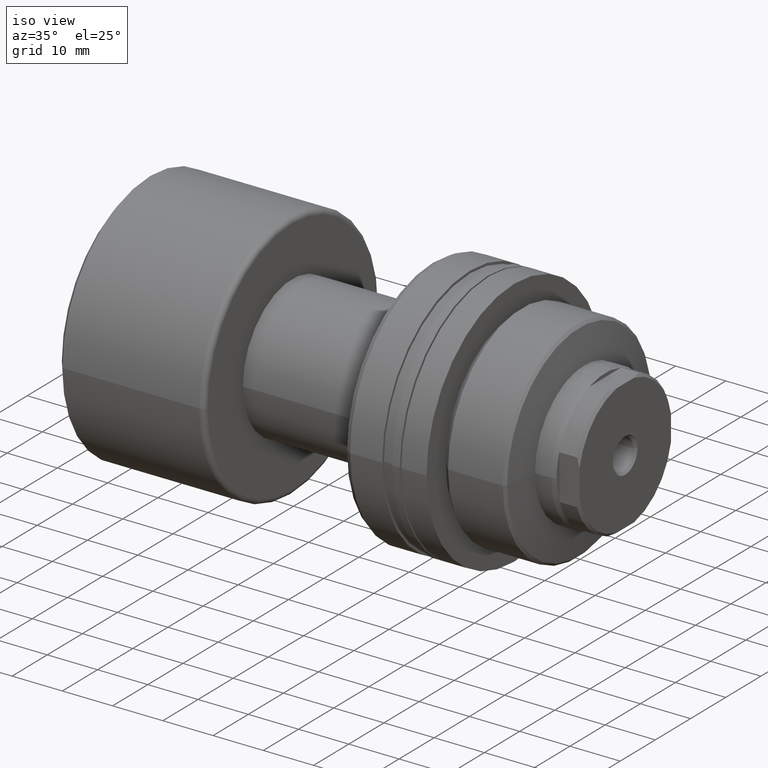
[diagram: clean part render]
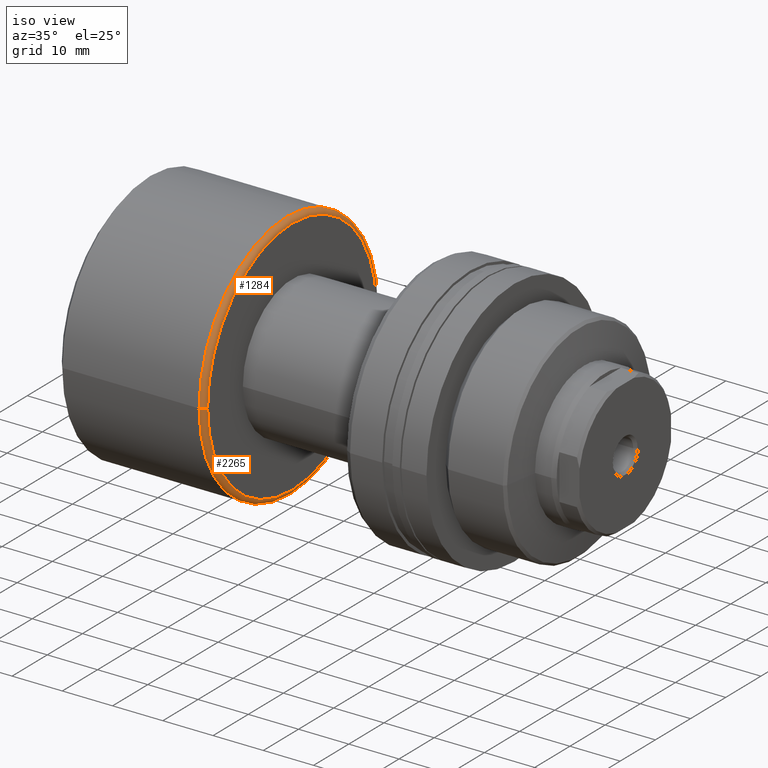
[diagram: same view with one multi-face feature highlighted, each face labeled with its STEP entity id]
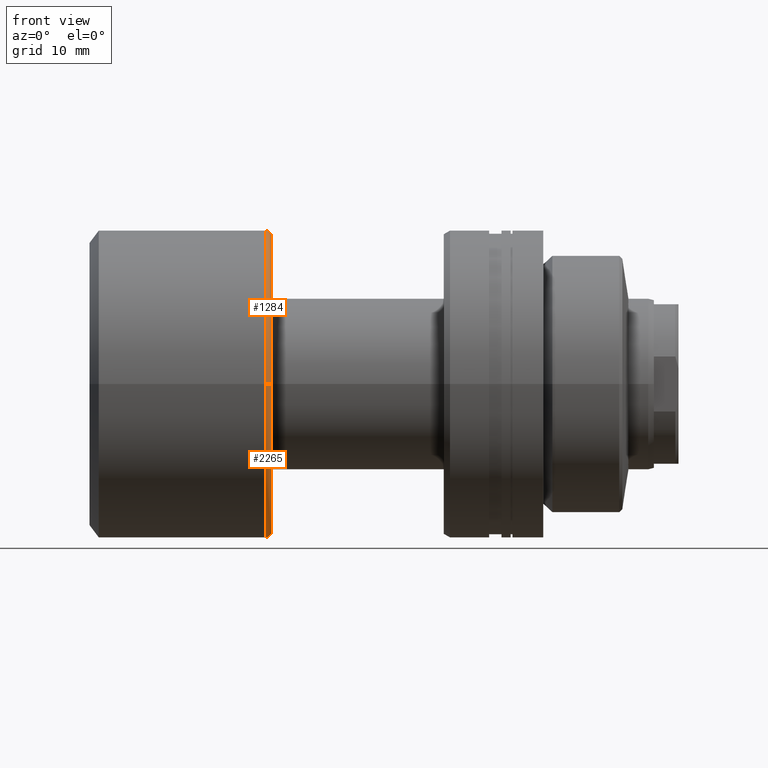
[diagram: same view with one multi-face feature highlighted, each face labeled with its STEP entity id]
A machine part, iso view. The highlighted faces form ONE feature: a constant-radius fillet chain: 2 tangent blend faces with common blend radius 1 mm. The faces share edges in the B-rep.
A second angle (front view) of the same feature is appended — it is thin or edge-on in the first view.
Their STEP definitions:
[1] entity #2265 (Torus):
#104 = DIRECTION ( 'NONE',  ( 0.000000000000000000, 0.000000000000000000, -1.000000000000000000 ) ) ;
#301 = CIRCLE ( 'NONE', #987, 1.000000000000000888 ) ;
#464 = EDGE_CURVE ( 'NONE', #930, #960, #1642, .T. ) ;
#474 = CARTESIAN_POINT ( 'NONE',  ( 29.69999999999999574, 24.00000000000000000, 3.000384657911015469E-15 ) ) ;
#513 = VERTEX_POINT ( 'NONE', #1980 ) ;
#570 = ORIENTED_EDGE ( 'NONE', *, *, #910, .T. ) ;
#572 = CIRCLE ( 'NONE', #1153, 1.000000000000000888 ) ;
#582 = AXIS2_PLACEMENT_3D ( 'NONE', #2216, #2195, #1309 ) ;
#603 = DIRECTION ( 'NONE',  ( -1.000000000000000000, -1.069542322069065801E-17, -0.000000000000000000 ) ) ;
#722 = CARTESIAN_POINT ( 'NONE',  ( 29.69999999999999574, 3.176540696545125501E-16, 0.000000000000000000 ) ) ;
#798 = AXIS2_PLACEMENT_3D ( 'NONE', #1331, #603, #1851 ) ;
#910 = EDGE_CURVE ( 'NONE', #960, #1617, #301, .T. ) ;
#930 = VERTEX_POINT ( 'NONE', #474 ) ;
#939 = FACE_OUTER_BOUND ( 'NONE', #1411, .T. ) ;
#960 = VERTEX_POINT ( 'NONE', #2065 ) ;
#987 = AXIS2_PLACEMENT_3D ( 'NONE', #2054, #104, #1361 ) ;
#1004 = EDGE_CURVE ( 'NONE', #513, #1617, #1495, .T. ) ;
#1077 = DIRECTION ( 'NONE',  ( 1.309811581274509052E-33, -1.224646799147353207E-16, 1.000000000000000000 ) ) ;
#1102 = EDGE_CURVE ( 'NONE', #930, #513, #572, .T. ) ;
#1153 = AXIS2_PLACEMENT_3D ( 'NONE', #2140, #1077, #1788 ) ;
#1268 = CARTESIAN_POINT ( 'NONE',  ( 28.69999999999999574, -25.00000000000000000, 0.000000000000000000 ) ) ;
#1309 = DIRECTION ( 'NONE',  ( 1.069542322069065955E-17, -1.000000000000000000, 0.000000000000000000 ) ) ;
#1331 = CARTESIAN_POINT ( 'NONE',  ( 28.69999999999999574, 3.069586464338218566E-16, 0.000000000000000000 ) ) ;
#1333 = ORIENTED_EDGE ( 'NONE', *, *, #1004, .F. ) ;
#1361 = DIRECTION ( 'NONE',  ( -1.000000000000000000, 0.000000000000000000, 0.000000000000000000 ) ) ;
#1411 = EDGE_LOOP ( 'NONE', ( #1633, #2277, #570, #1333 ) ) ;
#1495 = CIRCLE ( 'NONE', #798, 25.00000000000000000 ) ;
#1617 = VERTEX_POINT ( 'NONE', #1268 ) ;
#1633 = ORIENTED_EDGE ( 'NONE', *, *, #1102, .F. ) ;
#1642 = CIRCLE ( 'NONE', #1826, 24.00000000000000000 ) ;
#1788 = DIRECTION ( 'NONE',  ( 0.000000000000000000, -1.000000000000000000, -1.224646799147353454E-16 ) ) ;
#1826 = AXIS2_PLACEMENT_3D ( 'NONE', #722, #2131, #1991 ) ;
#1851 = DIRECTION ( 'NONE',  ( 0.000000000000000000, -1.000000000000000000, 0.000000000000000000 ) ) ;
#1980 = CARTESIAN_POINT ( 'NONE',  ( 28.69999999999999574, 25.00000000000000000, 3.061616997868383043E-15 ) ) ;
#1991 = DIRECTION ( 'NONE',  ( 0.000000000000000000, -1.000000000000000000, 0.000000000000000000 ) ) ;
#2054 = CARTESIAN_POINT ( 'NONE',  ( 28.69999999999999574, -24.00000000000000000, 0.000000000000000000 ) ) ;
#2065 = CARTESIAN_POINT ( 'NONE',  ( 29.69999999999999574, -24.00000000000000000, 0.000000000000000000 ) ) ;
#2131 = DIRECTION ( 'NONE',  ( -1.000000000000000000, -1.069542322069065801E-17, -0.000000000000000000 ) ) ;
#2140 = CARTESIAN_POINT ( 'NONE',  ( 28.69999999999999574, 24.00000000000000000, 2.939152317953647894E-15 ) ) ;
#2195 = DIRECTION ( 'NONE',  ( -1.000000000000000000, -1.069542322069065801E-17, -0.000000000000000000 ) ) ;
#2206 = TOROIDAL_SURFACE ( 'NONE', #582, 24.00000000000000000, 1.000000000000000888 ) ;
#2216 = CARTESIAN_POINT ( 'NONE',  ( 28.69999999999999574, 0.000000000000000000, 0.000000000000000000 ) ) ;
#2265 = ADVANCED_FACE ( 'NONE', ( #939 ), #2206, .T. ) ;
#2277 = ORIENTED_EDGE ( 'NONE', *, *, #464, .T. ) ;
[2] entity #1284 (Torus):
#61 = DIRECTION ( 'NONE',  ( 1.069542322069065955E-17, -1.000000000000000000, 0.000000000000000000 ) ) ;
#69 = CARTESIAN_POINT ( 'NONE',  ( 28.69999999999999574, 0.000000000000000000, 0.000000000000000000 ) ) ;
#104 = DIRECTION ( 'NONE',  ( 0.000000000000000000, 0.000000000000000000, -1.000000000000000000 ) ) ;
#128 = DIRECTION ( 'NONE',  ( 0.000000000000000000, -1.000000000000000000, 0.000000000000000000 ) ) ;
#243 = DIRECTION ( 'NONE',  ( -1.000000000000000000, -1.069542322069065801E-17, -0.000000000000000000 ) ) ;
#301 = CIRCLE ( 'NONE', #987, 1.000000000000000888 ) ;
#441 = FACE_OUTER_BOUND ( 'NONE', #2183, .T. ) ;
#446 = ORIENTED_EDGE ( 'NONE', *, *, #910, .F. ) ;
#453 = CARTESIAN_POINT ( 'NONE',  ( 29.69999999999999574, 3.176540696545125501E-16, 0.000000000000000000 ) ) ;
#471 = CARTESIAN_POINT ( 'NONE',  ( 28.69999999999999574, 3.069586464338218566E-16, 0.000000000000000000 ) ) ;
#474 = CARTESIAN_POINT ( 'NONE',  ( 29.69999999999999574, 24.00000000000000000, 3.000384657911015469E-15 ) ) ;
#513 = VERTEX_POINT ( 'NONE', #1980 ) ;
#572 = CIRCLE ( 'NONE', #1153, 1.000000000000000888 ) ;
#671 = DIRECTION ( 'NONE',  ( 0.000000000000000000, -1.000000000000000000, 0.000000000000000000 ) ) ;
#910 = EDGE_CURVE ( 'NONE', #960, #1617, #301, .T. ) ;
#930 = VERTEX_POINT ( 'NONE', #474 ) ;
#960 = VERTEX_POINT ( 'NONE', #2065 ) ;
#987 = AXIS2_PLACEMENT_3D ( 'NONE', #2054, #104, #1361 ) ;
#1077 = DIRECTION ( 'NONE',  ( 1.309811581274509052E-33, -1.224646799147353207E-16, 1.000000000000000000 ) ) ;
#1102 = EDGE_CURVE ( 'NONE', #930, #513, #572, .T. ) ;
#1118 = CIRCLE ( 'NONE', #2167, 25.00000000000000000 ) ;
#1153 = AXIS2_PLACEMENT_3D ( 'NONE', #2140, #1077, #1788 ) ;
#1192 = DIRECTION ( 'NONE',  ( -1.000000000000000000, -1.069542322069065801E-17, -0.000000000000000000 ) ) ;
#1268 = CARTESIAN_POINT ( 'NONE',  ( 28.69999999999999574, -25.00000000000000000, 0.000000000000000000 ) ) ;
#1284 = ADVANCED_FACE ( 'NONE', ( #441 ), #1570, .T. ) ;
#1361 = DIRECTION ( 'NONE',  ( -1.000000000000000000, 0.000000000000000000, 0.000000000000000000 ) ) ;
#1418 = ORIENTED_EDGE ( 'NONE', *, *, #1928, .T. ) ;
#1428 = EDGE_CURVE ( 'NONE', #1617, #513, #1118, .T. ) ;
#1508 = ORIENTED_EDGE ( 'NONE', *, *, #1428, .F. ) ;
#1570 = TOROIDAL_SURFACE ( 'NONE', #1717, 24.00000000000000000, 1.000000000000000888 ) ;
#1617 = VERTEX_POINT ( 'NONE', #1268 ) ;
#1648 = CIRCLE ( 'NONE', #1833, 24.00000000000000000 ) ;
#1717 = AXIS2_PLACEMENT_3D ( 'NONE', #69, #243, #61 ) ;
#1788 = DIRECTION ( 'NONE',  ( 0.000000000000000000, -1.000000000000000000, -1.224646799147353454E-16 ) ) ;
#1833 = AXIS2_PLACEMENT_3D ( 'NONE', #453, #2069, #671 ) ;
#1928 = EDGE_CURVE ( 'NONE', #960, #930, #1648, .T. ) ;
#1980 = CARTESIAN_POINT ( 'NONE',  ( 28.69999999999999574, 25.00000000000000000, 3.061616997868383043E-15 ) ) ;
#2018 = ORIENTED_EDGE ( 'NONE', *, *, #1102, .T. ) ;
#2054 = CARTESIAN_POINT ( 'NONE',  ( 28.69999999999999574, -24.00000000000000000, 0.000000000000000000 ) ) ;
#2065 = CARTESIAN_POINT ( 'NONE',  ( 29.69999999999999574, -24.00000000000000000, 0.000000000000000000 ) ) ;
#2069 = DIRECTION ( 'NONE',  ( -1.000000000000000000, -1.069542322069065801E-17, -0.000000000000000000 ) ) ;
#2140 = CARTESIAN_POINT ( 'NONE',  ( 28.69999999999999574, 24.00000000000000000, 2.939152317953647894E-15 ) ) ;
#2167 = AXIS2_PLACEMENT_3D ( 'NONE', #471, #1192, #128 ) ;
#2183 = EDGE_LOOP ( 'NONE', ( #1418, #2018, #1508, #446 ) ) ;